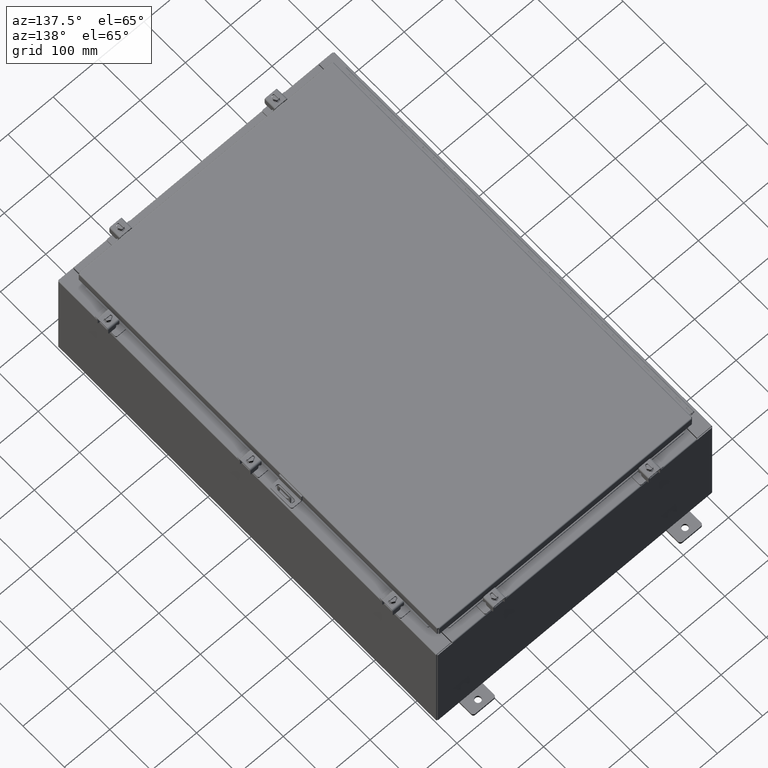
[diagram: clean part render]
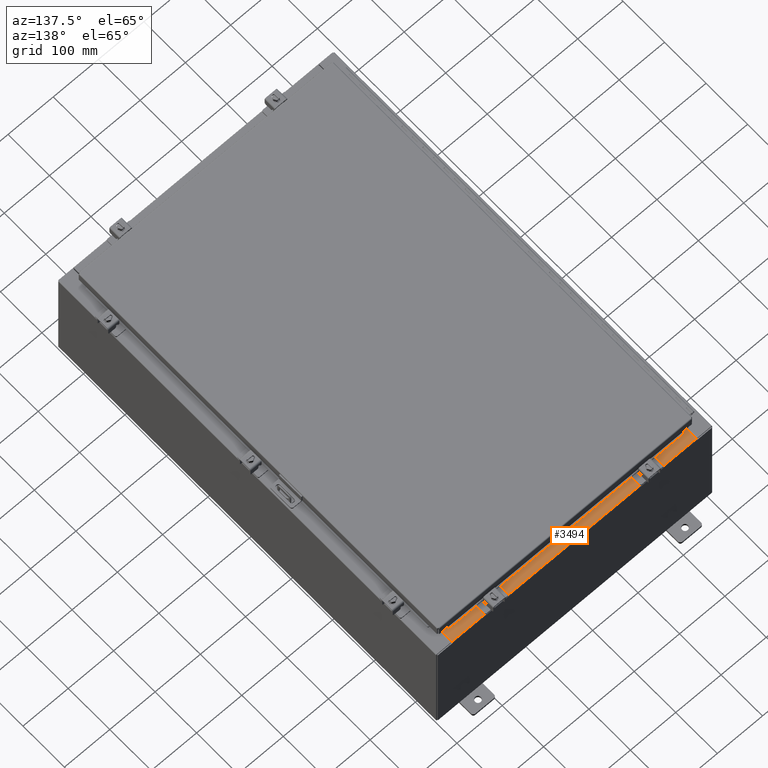
[diagram: same view with one face highlighted and labeled with its STEP entity id]
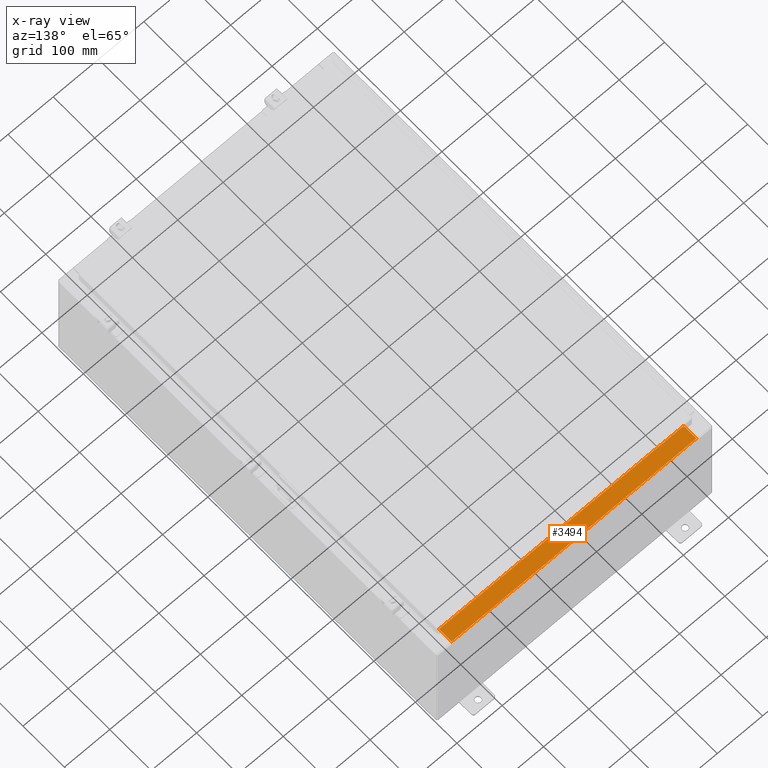
[diagram: x-ray of the same camera — body ghosted, the highlighted face saturated]
A machine part, auxiliary view. The second image highlights one B-rep face of the part: STEP entity #3494.
The next image is the same camera in x-ray: the body ghosted, the highlighted face saturated — about 0% of this face is hidden behind the body in this view.
In plain terms, the highlighted planar face has unit normal (0, 0, 1).
Its self-contained STEP definition (entity closure, byte-faithful):
#605 = CARTESIAN_POINT ( 'NONE',  ( 0.0000000000000000000, 1.748382715945128500E-014, 5.000000000000000000 ) ) ;
#1167 = AXIS2_PLACEMENT_3D ( 'NONE', #605, #30212, #10528 ) ;
#1588 = VECTOR ( 'NONE', #34631, 39.37007874015748100 ) ;
#1821 = ORIENTED_EDGE ( 'NONE', *, *, #13830, .T. ) ;
#2171 = FACE_OUTER_BOUND ( 'NONE', #4520, .T. ) ;
#3247 = CARTESIAN_POINT ( 'NONE',  ( 4.504626351736503400E-018, -0.08770000000000026400, 5.000000000000000000 ) ) ;
#3494 = ADVANCED_FACE ( 'NONE', ( #2171 ), #7092, .T. ) ;
#4181 = EDGE_CURVE ( 'NONE', #29346, #14897, #35551, .T. ) ;
#4520 = EDGE_LOOP ( 'NONE', ( #24043, #17264, #13362, #1821 ) ) ;
#7092 = PLANE ( 'NONE',  #1167 ) ;
#7116 = DIRECTION ( 'NONE',  ( -1.000000000000000000, -5.136404305013091600E-017, 1.831837571187793700E-031 ) ) ;
#7490 = CARTESIAN_POINT ( 'NONE',  ( 10.63720000000000400, -0.08770000000000026400, 5.000000000000000000 ) ) ;
#8175 = LINE ( 'NONE', #3247, #15910 ) ;
#9193 = VERTEX_POINT ( 'NONE', #33262 ) ;
#10227 = CARTESIAN_POINT ( 'NONE',  ( -10.63720000000000200, -1.287299999999999200, 5.000000000000004400 ) ) ;
#10367 = VERTEX_POINT ( 'NONE', #7490 ) ;
#10528 = DIRECTION ( 'NONE',  ( 0.0000000000000000000, -1.000000000000000000, 3.566381192773190000E-015 ) ) ;
#10531 = EDGE_CURVE ( 'NONE', #10367, #29346, #15175, .T. ) ;
#11656 = CARTESIAN_POINT ( 'NONE',  ( 10.63720000000000400, -1.287299999999999200, 5.000000000000002700 ) ) ;
#11693 = DIRECTION ( 'NONE',  ( -0.0000000000000000000, 1.000000000000000000, -3.566381192773190000E-015 ) ) ;
#13362 = ORIENTED_EDGE ( 'NONE', *, *, #10531, .F. ) ;
#13380 = LINE ( 'NONE', #24716, #38564 ) ;
#13830 = EDGE_CURVE ( 'NONE', #10367, #9193, #8175, .T. ) ;
#14897 = VERTEX_POINT ( 'NONE', #10227 ) ;
#15175 = LINE ( 'NONE', #34198, #40358 ) ;
#15910 = VECTOR ( 'NONE', #7116, 39.37007874015748100 ) ;
#17264 = ORIENTED_EDGE ( 'NONE', *, *, #4181, .F. ) ;
#17393 = EDGE_CURVE ( 'NONE', #14897, #9193, #13380, .T. ) ;
#24043 = ORIENTED_EDGE ( 'NONE', *, *, #17393, .F. ) ;
#24716 = CARTESIAN_POINT ( 'NONE',  ( -10.63720000000000200, -0.07470000000000015500, 5.000000000000000000 ) ) ;
#24843 = DIRECTION ( 'NONE',  ( -0.0000000000000000000, -1.000000000000000000, 3.566381192773190000E-015 ) ) ;
#29307 = CARTESIAN_POINT ( 'NONE',  ( 10.63720000000000200, -1.287299999999999200, 5.000000000000004400 ) ) ;
#29346 = VERTEX_POINT ( 'NONE', #29307 ) ;
#30212 = DIRECTION ( 'NONE',  ( 0.0000000000000000000, 3.566381192773190000E-015, 1.000000000000000000 ) ) ;
#33262 = CARTESIAN_POINT ( 'NONE',  ( -10.63720000000000200, -0.08770000000000026400, 5.000000000000000000 ) ) ;
#34198 = CARTESIAN_POINT ( 'NONE',  ( 10.63720000000000200, -1.300299999999999300, 5.000000000000004400 ) ) ;
#34631 = DIRECTION ( 'NONE',  ( -1.000000000000000000, 0.0000000000000000000, 0.0000000000000000000 ) ) ;
#35551 = LINE ( 'NONE', #11656, #1588 ) ;
#38564 = VECTOR ( 'NONE', #11693, 39.37007874015748100 ) ;
#40358 = VECTOR ( 'NONE', #24843, 39.37007874015748100 ) ;